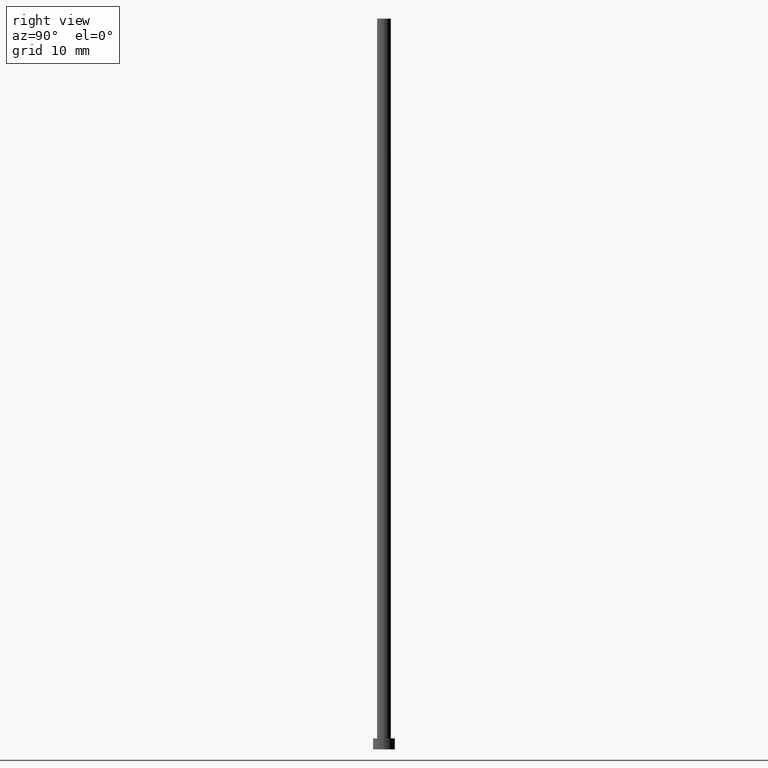
[diagram: clean part render]
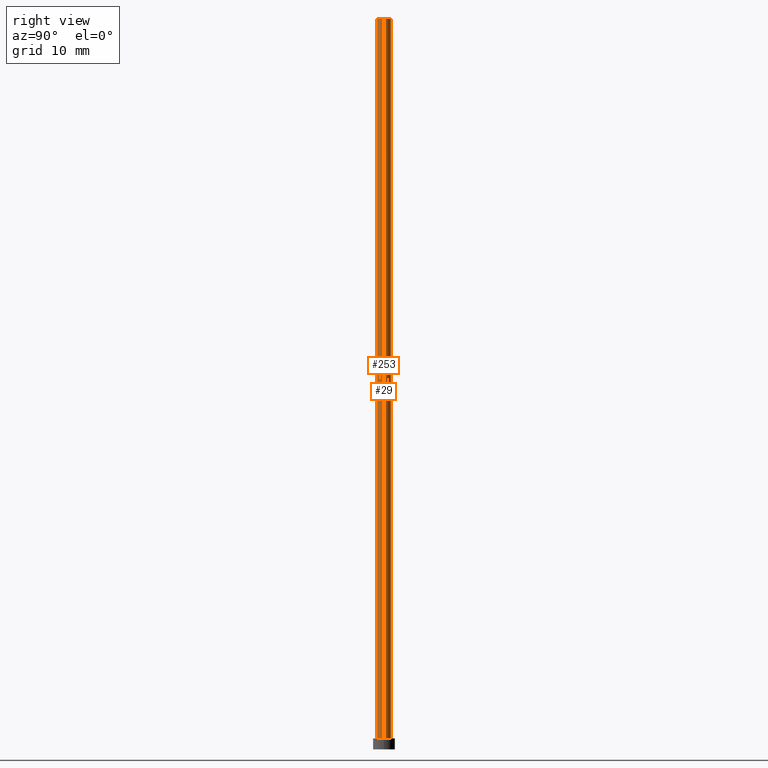
[diagram: same view with one multi-face feature highlighted, each face labeled with its STEP entity id]
A machine part, right view. The highlighted faces form ONE feature: a constant-radius fillet chain: 2 tangent blend faces with common blend radius 0.95 mm. The faces share edges in the B-rep.
Their STEP definitions:
[1] entity #253 (Cylinder):
#2 = EDGE_CURVE ( 'NONE', #190, #58, #90, .T. ) ;
#4 = EDGE_CURVE ( 'NONE', #244, #190, #74, .T. ) ;
#7 = CARTESIAN_POINT ( 'NONE',  ( -0.9499999999999999556, 0.000000000000000000, 1.500000000000000000 ) ) ;
#9 = EDGE_LOOP ( 'NONE', ( #77, #249, #36, #181 ) ) ;
#16 = FACE_OUTER_BOUND ( 'NONE', #9, .T. ) ;
#20 = VERTEX_POINT ( 'NONE', #7 ) ;
#25 = LINE ( 'NONE', #157, #30 ) ;
#30 = VECTOR ( 'NONE', #175, 1000.000000000000000 ) ;
#32 = AXIS2_PLACEMENT_3D ( 'NONE', #89, #101, #85 ) ;
#36 = ORIENTED_EDGE ( 'NONE', *, *, #162, .T. ) ;
#55 = EDGE_CURVE ( 'NONE', #20, #58, #151, .T. ) ;
#58 = VERTEX_POINT ( 'NONE', #120 ) ;
#62 = CARTESIAN_POINT ( 'NONE',  ( 0.9499999999999999556, 1.163414459189985682E-16, 100.0000000000000000 ) ) ;
#71 = CARTESIAN_POINT ( 'NONE',  ( 0.9499999999999999556, 1.163414459189985682E-16, 100.0000000000000000 ) ) ;
#74 = CIRCLE ( 'NONE', #91, 0.9499999999999999556 ) ;
#77 = ORIENTED_EDGE ( 'NONE', *, *, #2, .F. ) ;
#82 = DIRECTION ( 'NONE',  ( -0.000000000000000000, -0.000000000000000000, -1.000000000000000000 ) ) ;
#85 = DIRECTION ( 'NONE',  ( 1.000000000000000000, 0.000000000000000000, 0.000000000000000000 ) ) ;
#87 = DIRECTION ( 'NONE',  ( -0.000000000000000000, -0.000000000000000000, -1.000000000000000000 ) ) ;
#89 = CARTESIAN_POINT ( 'NONE',  ( 0.000000000000000000, 0.000000000000000000, 1.500000000000000000 ) ) ;
#90 = LINE ( 'NONE', #71, #174 ) ;
#91 = AXIS2_PLACEMENT_3D ( 'NONE', #234, #148, #217 ) ;
#101 = DIRECTION ( 'NONE',  ( 0.000000000000000000, 0.000000000000000000, 1.000000000000000000 ) ) ;
#103 = CARTESIAN_POINT ( 'NONE',  ( 0.000000000000000000, 0.000000000000000000, 100.0000000000000000 ) ) ;
#120 = CARTESIAN_POINT ( 'NONE',  ( 0.9499999999999999556, 1.163414459189985682E-16, 1.500000000000000000 ) ) ;
#142 = DIRECTION ( 'NONE',  ( -1.000000000000000000, 0.000000000000000000, 0.000000000000000000 ) ) ;
#148 = DIRECTION ( 'NONE',  ( 0.000000000000000000, 0.000000000000000000, 1.000000000000000000 ) ) ;
#151 = CIRCLE ( 'NONE', #32, 0.9499999999999999556 ) ;
#157 = CARTESIAN_POINT ( 'NONE',  ( -0.9499999999999999556, 0.000000000000000000, 100.0000000000000000 ) ) ;
#162 = EDGE_CURVE ( 'NONE', #244, #20, #25, .T. ) ;
#174 = VECTOR ( 'NONE', #87, 1000.000000000000000 ) ;
#175 = DIRECTION ( 'NONE',  ( -0.000000000000000000, -0.000000000000000000, -1.000000000000000000 ) ) ;
#180 = CYLINDRICAL_SURFACE ( 'NONE', #189, 0.9499999999999999556 ) ;
#181 = ORIENTED_EDGE ( 'NONE', *, *, #55, .T. ) ;
#189 = AXIS2_PLACEMENT_3D ( 'NONE', #103, #82, #142 ) ;
#190 = VERTEX_POINT ( 'NONE', #62 ) ;
#198 = CARTESIAN_POINT ( 'NONE',  ( -0.9499999999999999556, 0.000000000000000000, 100.0000000000000000 ) ) ;
#217 = DIRECTION ( 'NONE',  ( 1.000000000000000000, 0.000000000000000000, 0.000000000000000000 ) ) ;
#234 = CARTESIAN_POINT ( 'NONE',  ( 0.000000000000000000, 0.000000000000000000, 100.0000000000000000 ) ) ;
#244 = VERTEX_POINT ( 'NONE', #198 ) ;
#249 = ORIENTED_EDGE ( 'NONE', *, *, #4, .F. ) ;
#253 = ADVANCED_FACE ( 'NONE', ( #16 ), #180, .T. ) ;
[2] entity #29 (Cylinder):
#2 = EDGE_CURVE ( 'NONE', #190, #58, #90, .T. ) ;
#6 = AXIS2_PLACEMENT_3D ( 'NONE', #205, #211, #49 ) ;
#7 = CARTESIAN_POINT ( 'NONE',  ( -0.9499999999999999556, 0.000000000000000000, 1.500000000000000000 ) ) ;
#15 = ORIENTED_EDGE ( 'NONE', *, *, #2, .T. ) ;
#20 = VERTEX_POINT ( 'NONE', #7 ) ;
#25 = LINE ( 'NONE', #157, #30 ) ;
#29 = ADVANCED_FACE ( 'NONE', ( #34 ), #97, .T. ) ;
#30 = VECTOR ( 'NONE', #175, 1000.000000000000000 ) ;
#34 = FACE_OUTER_BOUND ( 'NONE', #153, .T. ) ;
#49 = DIRECTION ( 'NONE',  ( 1.000000000000000000, 0.000000000000000000, 0.000000000000000000 ) ) ;
#51 = EDGE_CURVE ( 'NONE', #190, #244, #235, .T. ) ;
#57 = ORIENTED_EDGE ( 'NONE', *, *, #51, .F. ) ;
#58 = VERTEX_POINT ( 'NONE', #120 ) ;
#59 = EDGE_CURVE ( 'NONE', #58, #20, #219, .T. ) ;
#62 = CARTESIAN_POINT ( 'NONE',  ( 0.9499999999999999556, 1.163414459189985682E-16, 100.0000000000000000 ) ) ;
#71 = CARTESIAN_POINT ( 'NONE',  ( 0.9499999999999999556, 1.163414459189985682E-16, 100.0000000000000000 ) ) ;
#87 = DIRECTION ( 'NONE',  ( -0.000000000000000000, -0.000000000000000000, -1.000000000000000000 ) ) ;
#90 = LINE ( 'NONE', #71, #174 ) ;
#97 = CYLINDRICAL_SURFACE ( 'NONE', #250, 0.9499999999999999556 ) ;
#100 = ORIENTED_EDGE ( 'NONE', *, *, #162, .F. ) ;
#120 = CARTESIAN_POINT ( 'NONE',  ( 0.9499999999999999556, 1.163414459189985682E-16, 1.500000000000000000 ) ) ;
#122 = CARTESIAN_POINT ( 'NONE',  ( 0.000000000000000000, 0.000000000000000000, 1.500000000000000000 ) ) ;
#128 = DIRECTION ( 'NONE',  ( -1.000000000000000000, 0.000000000000000000, 0.000000000000000000 ) ) ;
#138 = ORIENTED_EDGE ( 'NONE', *, *, #59, .T. ) ;
#153 = EDGE_LOOP ( 'NONE', ( #57, #15, #138, #100 ) ) ;
#157 = CARTESIAN_POINT ( 'NONE',  ( -0.9499999999999999556, 0.000000000000000000, 100.0000000000000000 ) ) ;
#159 = DIRECTION ( 'NONE',  ( 0.000000000000000000, 0.000000000000000000, 1.000000000000000000 ) ) ;
#162 = EDGE_CURVE ( 'NONE', #244, #20, #25, .T. ) ;
#174 = VECTOR ( 'NONE', #87, 1000.000000000000000 ) ;
#175 = DIRECTION ( 'NONE',  ( -0.000000000000000000, -0.000000000000000000, -1.000000000000000000 ) ) ;
#190 = VERTEX_POINT ( 'NONE', #62 ) ;
#198 = CARTESIAN_POINT ( 'NONE',  ( -0.9499999999999999556, 0.000000000000000000, 100.0000000000000000 ) ) ;
#205 = CARTESIAN_POINT ( 'NONE',  ( 0.000000000000000000, 0.000000000000000000, 100.0000000000000000 ) ) ;
#211 = DIRECTION ( 'NONE',  ( 0.000000000000000000, 0.000000000000000000, 1.000000000000000000 ) ) ;
#219 = CIRCLE ( 'NONE', #236, 0.9499999999999999556 ) ;
#224 = CARTESIAN_POINT ( 'NONE',  ( 0.000000000000000000, 0.000000000000000000, 100.0000000000000000 ) ) ;
#235 = CIRCLE ( 'NONE', #6, 0.9499999999999999556 ) ;
#236 = AXIS2_PLACEMENT_3D ( 'NONE', #122, #159, #242 ) ;
#239 = DIRECTION ( 'NONE',  ( -0.000000000000000000, -0.000000000000000000, -1.000000000000000000 ) ) ;
#242 = DIRECTION ( 'NONE',  ( 1.000000000000000000, 0.000000000000000000, 0.000000000000000000 ) ) ;
#244 = VERTEX_POINT ( 'NONE', #198 ) ;
#250 = AXIS2_PLACEMENT_3D ( 'NONE', #224, #239, #128 ) ;